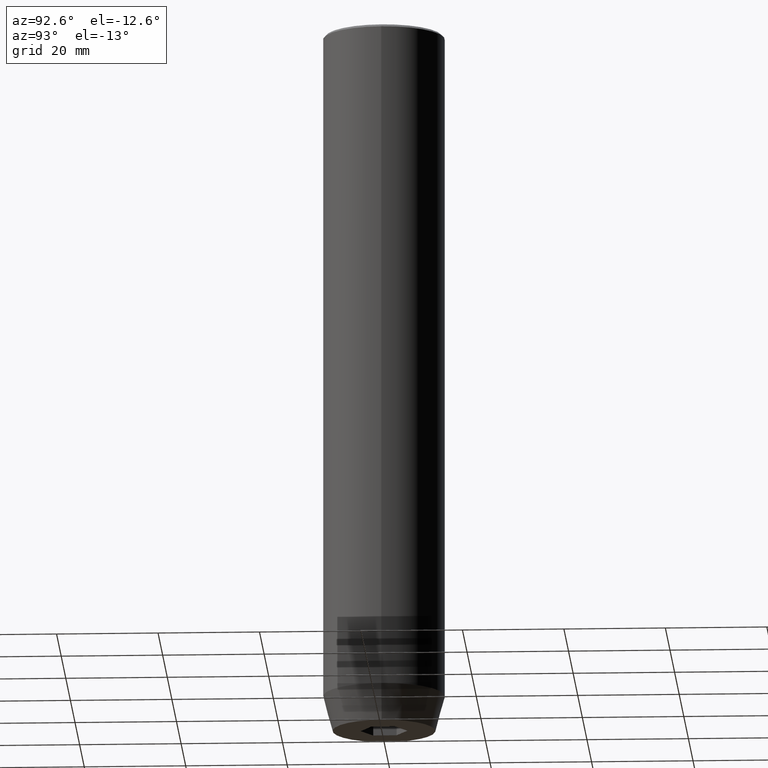
[diagram: clean part render]
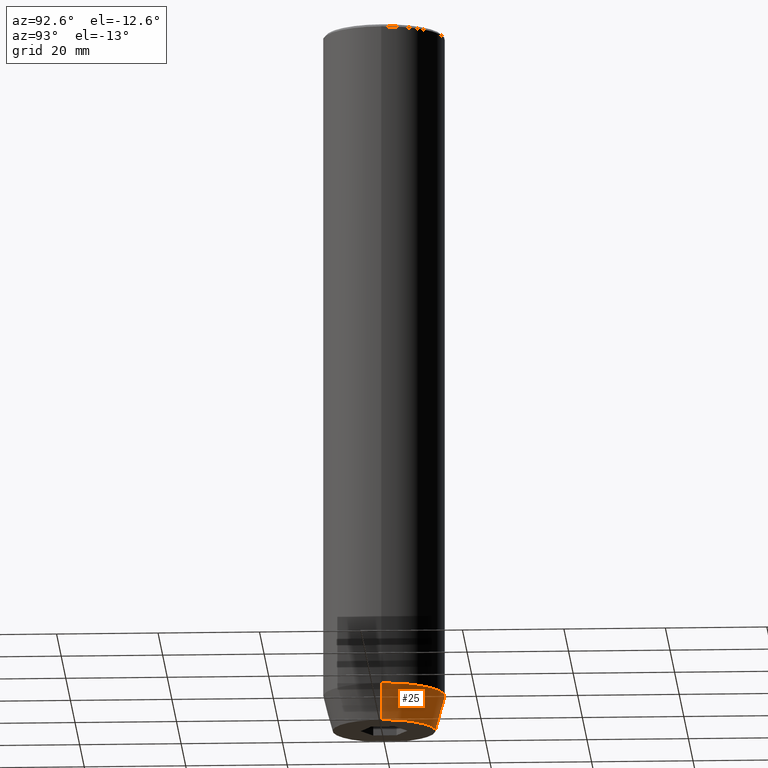
[diagram: same view with one face highlighted and labeled with its STEP entity id]
A machine part, auxiliary view. The second image highlights one B-rep face of the part: STEP entity #25.
In plain terms, the highlighted conical surface has half-angle 15 deg.
Its self-contained STEP definition (entity closure, byte-faithful):
#15 = VECTOR ( 'NONE', #540, 1000.000000000000000 ) ;
#19 = VERTEX_POINT ( 'NONE', #143 ) ;
#25 = ADVANCED_FACE ( 'NONE', ( #45 ), #94, .T. ) ;
#45 = FACE_OUTER_BOUND ( 'NONE', #326, .T. ) ;
#61 = EDGE_CURVE ( 'NONE', #494, #375, #242, .T. ) ;
#72 = AXIS2_PLACEMENT_3D ( 'NONE', #309, #396, #586 ) ;
#88 = DIRECTION ( 'NONE',  ( -0.2588190451025213501, 3.169619151431772337E-17, 0.9659258262890680902 ) ) ;
#94 = CONICAL_SURFACE ( 'NONE', #437, 12.00000000000000000, 0.2617993877991500740 ) ;
#143 = CARTESIAN_POINT ( 'NONE',  ( 10.12435565298213547, 0.000000000000000000, -140.0000000000000000 ) ) ;
#151 = EDGE_CURVE ( 'NONE', #19, #356, #402, .T. ) ;
#177 = CARTESIAN_POINT ( 'NONE',  ( 12.00000000000000000, 0.000000000000000000, -133.0000000000000000 ) ) ;
#184 = DIRECTION ( 'NONE',  ( 1.000000000000000000, 0.000000000000000000, 0.000000000000000000 ) ) ;
#194 = EDGE_CURVE ( 'NONE', #19, #494, #261, .T. ) ;
#224 = CARTESIAN_POINT ( 'NONE',  ( 0.000000000000000000, 0.000000000000000000, -133.0000000000000000 ) ) ;
#234 = LINE ( 'NONE', #458, #382 ) ;
#237 = DIRECTION ( 'NONE',  ( -0.000000000000000000, -0.000000000000000000, 1.000000000000000000 ) ) ;
#242 = CIRCLE ( 'NONE', #276, 12.00000000000000000 ) ;
#261 = LINE ( 'NONE', #177, #15 ) ;
#272 = ORIENTED_EDGE ( 'NONE', *, *, #339, .T. ) ;
#276 = AXIS2_PLACEMENT_3D ( 'NONE', #479, #237, #379 ) ;
#309 = CARTESIAN_POINT ( 'NONE',  ( 0.000000000000000000, 0.000000000000000000, -140.0000000000000000 ) ) ;
#319 = DIRECTION ( 'NONE',  ( -0.000000000000000000, -0.000000000000000000, 1.000000000000000000 ) ) ;
#326 = EDGE_LOOP ( 'NONE', ( #465, #272, #455, #518 ) ) ;
#335 = CARTESIAN_POINT ( 'NONE',  ( -12.00000000000000000, 1.469576158976823947E-15, -133.0000000000000000 ) ) ;
#336 = CARTESIAN_POINT ( 'NONE',  ( 12.00000000000000000, 0.000000000000000000, -133.0000000000000000 ) ) ;
#339 = EDGE_CURVE ( 'NONE', #356, #375, #234, .T. ) ;
#356 = VERTEX_POINT ( 'NONE', #461 ) ;
#375 = VERTEX_POINT ( 'NONE', #335 ) ;
#379 = DIRECTION ( 'NONE',  ( 1.000000000000000000, 0.000000000000000000, 0.000000000000000000 ) ) ;
#382 = VECTOR ( 'NONE', #88, 1000.000000000000000 ) ;
#396 = DIRECTION ( 'NONE',  ( -0.000000000000000000, -0.000000000000000000, 1.000000000000000000 ) ) ;
#402 = CIRCLE ( 'NONE', #72, 10.12435565298213547 ) ;
#437 = AXIS2_PLACEMENT_3D ( 'NONE', #224, #319, #184 ) ;
#455 = ORIENTED_EDGE ( 'NONE', *, *, #61, .F. ) ;
#458 = CARTESIAN_POINT ( 'NONE',  ( -12.00000000000000000, 1.469576158976823947E-15, -133.0000000000000000 ) ) ;
#461 = CARTESIAN_POINT ( 'NONE',  ( -10.12435565298213547, 1.354726066681111050E-15, -140.0000000000000000 ) ) ;
#465 = ORIENTED_EDGE ( 'NONE', *, *, #151, .T. ) ;
#479 = CARTESIAN_POINT ( 'NONE',  ( 0.000000000000000000, 0.000000000000000000, -133.0000000000000000 ) ) ;
#494 = VERTEX_POINT ( 'NONE', #336 ) ;
#518 = ORIENTED_EDGE ( 'NONE', *, *, #194, .F. ) ;
#540 = DIRECTION ( 'NONE',  ( 0.2588190451025213501, 0.000000000000000000, 0.9659258262890680902 ) ) ;
#586 = DIRECTION ( 'NONE',  ( 1.000000000000000000, 0.000000000000000000, 0.000000000000000000 ) ) ;